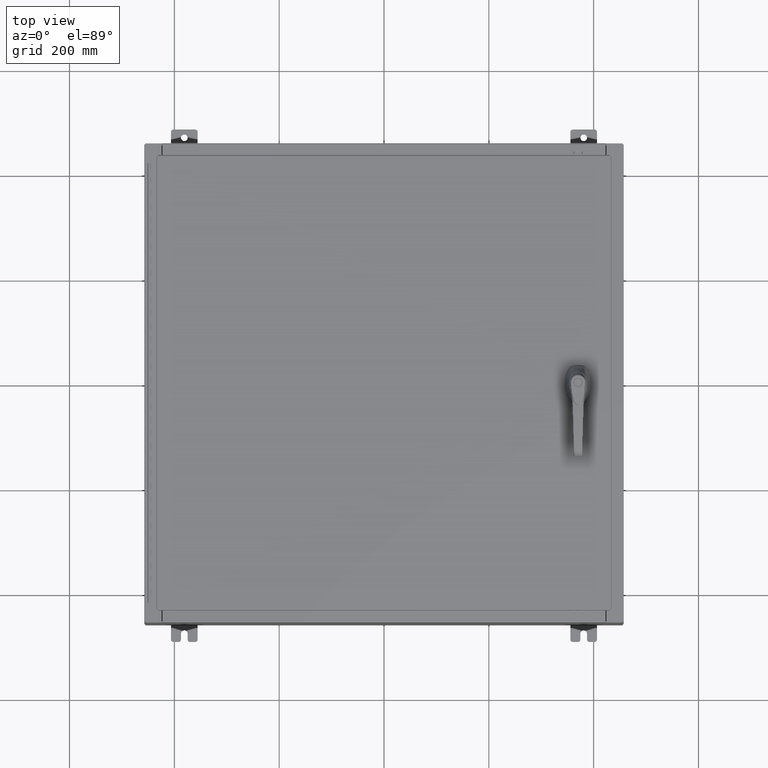
[diagram: clean part render]
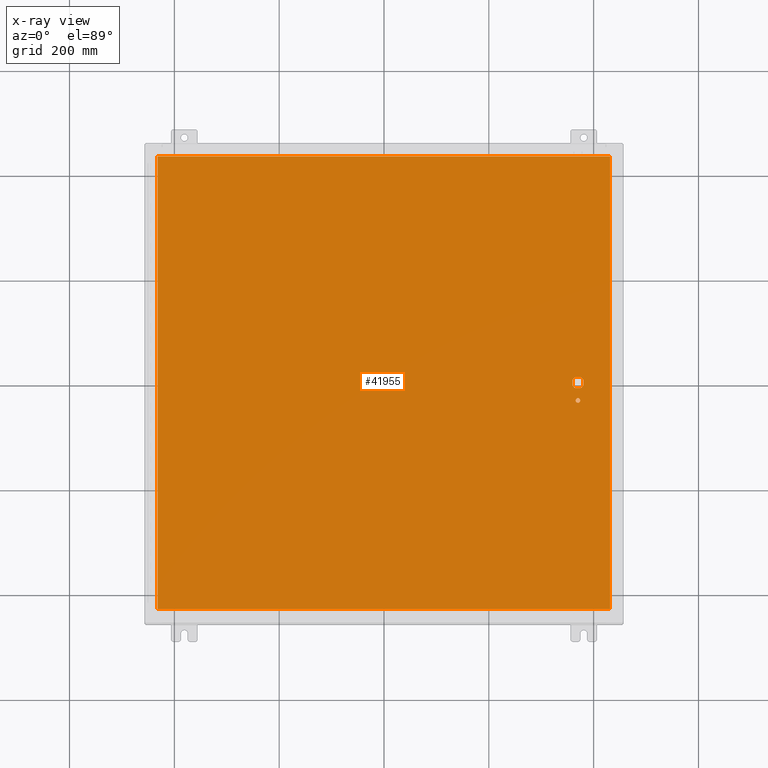
[diagram: x-ray — body ghosted, one internal face saturated and labeled with its STEP entity id]
A machine part, top view, then the same camera in x-ray: the body is ghosted and one INTERNAL B-rep face — a face not visible from any outside direction — is saturated and labeled: STEP entity #41955.
In plain terms, the highlighted planar face has unit normal (0, 0, -1).
Its self-contained STEP definition (entity closure, byte-faithful):
#2601 = EDGE_CURVE ( 'NONE', #122475, #100259, #29205, .T. ) ;
#3986 = ORIENTED_EDGE ( 'NONE', *, *, #30533, .F. ) ;
#4127 = DIRECTION ( 'NONE',  ( -1.000000000000000000, -0.0000000000000000000, -0.0000000000000000000 ) ) ;
#4489 = VERTEX_POINT ( 'NONE', #11542 ) ;
#4618 = AXIS2_PLACEMENT_3D ( 'NONE', #85239, #27303, #94939 ) ;
#5977 = EDGE_LOOP ( 'NONE', ( #25456, #96350 ) ) ;
#8508 = VERTEX_POINT ( 'NONE', #57621 ) ;
#11090 = VERTEX_POINT ( 'NONE', #61719 ) ;
#11185 = CARTESIAN_POINT ( 'NONE',  ( 14.17500000000007400, 0.0000000000000000000, -0.07470000000000003000 ) ) ;
#11542 = CARTESIAN_POINT ( 'NONE',  ( 14.37777262924369000, 0.4029999999999252000, -0.07470000000000003000 ) ) ;
#11839 = CIRCLE ( 'NONE', #111214, 0.4499999999999168000 ) ;
#12846 = AXIS2_PLACEMENT_3D ( 'NONE', #35250, #16188, #83838 ) ;
#13475 = CARTESIAN_POINT ( 'NONE',  ( 14.57799999999999900, 0.0000000000000000000, -0.07470000000000003000 ) ) ;
#15281 = CIRCLE ( 'NONE', #4618, 0.1715000000000011500 ) ;
#15480 = CARTESIAN_POINT ( 'NONE',  ( -16.99029999999999800, -17.00630000000000000, -0.07470000000000019700 ) ) ;
#16188 = DIRECTION ( 'NONE',  ( 0.0000000000000000000, 0.0000000000000000000, -1.000000000000000000 ) ) ;
#16287 = ORIENTED_EDGE ( 'NONE', *, *, #55651, .T. ) ;
#18176 = DIRECTION ( 'NONE',  ( -1.000000000000000000, 0.0000000000000000000, 0.0000000000000000000 ) ) ;
#19513 = ORIENTED_EDGE ( 'NONE', *, *, #2601, .T. ) ;
#19680 = EDGE_CURVE ( 'NONE', #54556, #63920, #24441, .T. ) ;
#19795 = CARTESIAN_POINT ( 'NONE',  ( 14.77822737075630900, -0.4029999999999252000, -0.07470000000000003000 ) ) ;
#20873 = DIRECTION ( 'NONE',  ( 0.0000000000000000000, -1.000000000000000000, 0.0000000000000000000 ) ) ;
#22080 = CIRCLE ( 'NONE', #62722, 0.4499999999999168000 ) ;
#23130 = DIRECTION ( 'NONE',  ( -1.000000000000000000, -1.776356839400246700E-015, 0.0000000000000000000 ) ) ;
#24441 = LINE ( 'NONE', #57117, #92513 ) ;
#24478 = EDGE_CURVE ( 'NONE', #47353, #92504, #103629, .T. ) ;
#25456 = ORIENTED_EDGE ( 'NONE', *, *, #76000, .T. ) ;
#26355 = CARTESIAN_POINT ( 'NONE',  ( 14.17500000000007400, 0.2002273707563075900, -0.07470000000000003000 ) ) ;
#27036 = CARTESIAN_POINT ( 'NONE',  ( 0.0000000000000000000, -0.4029999999999252000, -0.07470000000000003000 ) ) ;
#27204 = VECTOR ( 'NONE', #20873, 39.37007874015748100 ) ;
#27216 = ORIENTED_EDGE ( 'NONE', *, *, #33194, .T. ) ;
#27303 = DIRECTION ( 'NONE',  ( -0.0000000000000000000, -0.0000000000000000000, 1.000000000000000000 ) ) ;
#27489 = ORIENTED_EDGE ( 'NONE', *, *, #92043, .F. ) ;
#28669 = EDGE_LOOP ( 'NONE', ( #113348, #125325, #3986, #66992 ) ) ;
#29205 = CIRCLE ( 'NONE', #72695, 0.4499999999999168000 ) ;
#29227 = VECTOR ( 'NONE', #92378, 39.37007874015748100 ) ;
#30533 = EDGE_CURVE ( 'NONE', #78209, #84609, #122445, .T. ) ;
#31243 = EDGE_CURVE ( 'NONE', #87976, #122475, #54307, .T. ) ;
#31715 = CARTESIAN_POINT ( 'NONE',  ( 16.99029999999999800, 17.00630000000000700, -0.07470000000000000300 ) ) ;
#32192 = DIRECTION ( 'NONE',  ( -0.0000000000000000000, -0.0000000000000000000, 1.000000000000000000 ) ) ;
#33194 = EDGE_CURVE ( 'NONE', #85109, #102767, #11839, .T. ) ;
#35250 = CARTESIAN_POINT ( 'NONE',  ( 0.0000000000000000000, 0.0000000000000000000, -0.07470000000000000300 ) ) ;
#36061 = LINE ( 'NONE', #90755, #110189 ) ;
#37777 = LINE ( 'NONE', #99913, #60457 ) ;
#40231 = CARTESIAN_POINT ( 'NONE',  ( 14.57799999999999900, -1.338000000000000100, -0.07470000000000003000 ) ) ;
#41955 = ADVANCED_FACE ( 'NONE', ( #86696, #61030, #44422 ), #122297, .T. ) ;
#42931 = ORIENTED_EDGE ( 'NONE', *, *, #48716, .T. ) ;
#44422 = FACE_BOUND ( 'NONE', #105941, .T. ) ;
#47353 = VERTEX_POINT ( 'NONE', #110457 ) ;
#48361 = CARTESIAN_POINT ( 'NONE',  ( 14.57799999999999900, 0.0000000000000000000, -0.07470000000000003000 ) ) ;
#48716 = EDGE_CURVE ( 'NONE', #4489, #87976, #22080, .T. ) ;
#49946 = DIRECTION ( 'NONE',  ( -1.000000000000000000, 0.0000000000000000000, 0.0000000000000000000 ) ) ;
#51505 = CARTESIAN_POINT ( 'NONE',  ( 14.57799999999999900, 0.0000000000000000000, -0.07470000000000003000 ) ) ;
#54307 = LINE ( 'NONE', #11185, #27204 ) ;
#54376 = VECTOR ( 'NONE', #18176, 39.37007874015748100 ) ;
#54447 = VECTOR ( 'NONE', #94649, 39.37007874015748100 ) ;
#54556 = VERTEX_POINT ( 'NONE', #78893 ) ;
#55651 = EDGE_CURVE ( 'NONE', #100259, #85109, #111925, .T. ) ;
#55718 = CARTESIAN_POINT ( 'NONE',  ( -16.99029999999999400, 17.00630000000000700, -0.07470000000000000300 ) ) ;
#57117 = CARTESIAN_POINT ( 'NONE',  ( 16.99029999999999800, -17.00629999999999600, -0.07470000000000019700 ) ) ;
#57343 = LINE ( 'NONE', #105289, #54376 ) ;
#57522 = DIRECTION ( 'NONE',  ( 0.0000000000000000000, 1.000000000000000000, 0.0000000000000000000 ) ) ;
#57621 = CARTESIAN_POINT ( 'NONE',  ( 14.74950000000000100, -1.338000000000000100, -0.07470000000000003000 ) ) ;
#58055 = DIRECTION ( 'NONE',  ( -1.000000000000000000, -5.329070518200740300E-015, 0.0000000000000000000 ) ) ;
#58218 = DIRECTION ( 'NONE',  ( 0.0000000000000000000, -1.000000000000000000, 0.0000000000000000000 ) ) ;
#60457 = VECTOR ( 'NONE', #110104, 39.37007874015748100 ) ;
#61030 = FACE_OUTER_BOUND ( 'NONE', #28669, .T. ) ;
#61211 = DIRECTION ( 'NONE',  ( -1.000000000000000000, -1.776356839400246700E-015, 0.0000000000000000000 ) ) ;
#61719 = CARTESIAN_POINT ( 'NONE',  ( 14.40649999999999800, -1.338000000000000100, -0.07470000000000003000 ) ) ;
#62722 = AXIS2_PLACEMENT_3D ( 'NONE', #48361, #115983, #58055 ) ;
#63657 = CARTESIAN_POINT ( 'NONE',  ( 14.37777262924369000, -0.4029999999999250300, -0.07470000000000003000 ) ) ;
#63920 = VERTEX_POINT ( 'NONE', #31715 ) ;
#66992 = ORIENTED_EDGE ( 'NONE', *, *, #119212, .F. ) ;
#71042 = VECTOR ( 'NONE', #58218, 39.37007874015748100 ) ;
#72695 = AXIS2_PLACEMENT_3D ( 'NONE', #51505, #119091, #61211 ) ;
#76000 = EDGE_CURVE ( 'NONE', #8508, #11090, #15281, .T. ) ;
#77645 = LINE ( 'NONE', #15480, #29227 ) ;
#78209 = VERTEX_POINT ( 'NONE', #55718 ) ;
#78893 = CARTESIAN_POINT ( 'NONE',  ( 16.99029999999999800, -17.00630000000000000, -0.07470000000000000300 ) ) ;
#81118 = DIRECTION ( 'NONE',  ( -0.0000000000000000000, -0.0000000000000000000, 1.000000000000000000 ) ) ;
#83838 = DIRECTION ( 'NONE',  ( -1.000000000000000000, 0.0000000000000000000, -0.0000000000000000000 ) ) ;
#84609 = VERTEX_POINT ( 'NONE', #122264 ) ;
#85109 = VERTEX_POINT ( 'NONE', #19795 ) ;
#85239 = CARTESIAN_POINT ( 'NONE',  ( 14.57799999999999900, -1.338000000000000100, -0.07470000000000003000 ) ) ;
#86696 = FACE_BOUND ( 'NONE', #5977, .T. ) ;
#86824 = EDGE_CURVE ( 'NONE', #84609, #54556, #77645, .T. ) ;
#87710 = CARTESIAN_POINT ( 'NONE',  ( 14.17500000000007400, -0.2002273707563079800, -0.07470000000000003000 ) ) ;
#87976 = VERTEX_POINT ( 'NONE', #26355 ) ;
#90079 = CARTESIAN_POINT ( 'NONE',  ( 14.57799999999999900, 0.0000000000000000000, -0.07470000000000003000 ) ) ;
#90755 = CARTESIAN_POINT ( 'NONE',  ( 16.99029999999999800, 17.00630000000000700, -0.07469999999999910000 ) ) ;
#92043 = EDGE_CURVE ( 'NONE', #47353, #102767, #37777, .T. ) ;
#92378 = DIRECTION ( 'NONE',  ( 1.000000000000000000, -0.0000000000000000000, -0.0000000000000000000 ) ) ;
#92504 = VERTEX_POINT ( 'NONE', #108817 ) ;
#92513 = VECTOR ( 'NONE', #57522, 39.37007874015748100 ) ;
#94557 = AXIS2_PLACEMENT_3D ( 'NONE', #40231, #107874, #49946 ) ;
#94567 = CIRCLE ( 'NONE', #94557, 0.1715000000000011500 ) ;
#94649 = DIRECTION ( 'NONE',  ( 1.000000000000000000, 0.0000000000000000000, 0.0000000000000000000 ) ) ;
#94939 = DIRECTION ( 'NONE',  ( -1.000000000000000000, 0.0000000000000000000, 0.0000000000000000000 ) ) ;
#96350 = ORIENTED_EDGE ( 'NONE', *, *, #110475, .T. ) ;
#99682 = ORIENTED_EDGE ( 'NONE', *, *, #24478, .T. ) ;
#99823 = DIRECTION ( 'NONE',  ( -1.000000000000000000, -5.329070518200740300E-015, 0.0000000000000000000 ) ) ;
#99913 = CARTESIAN_POINT ( 'NONE',  ( 14.98099999999992700, 8.175868191945441800E-014, -0.07470000000000003000 ) ) ;
#100259 = VERTEX_POINT ( 'NONE', #63657 ) ;
#102767 = VERTEX_POINT ( 'NONE', #111310 ) ;
#103629 = CIRCLE ( 'NONE', #125209, 0.4499999999999168000 ) ;
#104395 = ORIENTED_EDGE ( 'NONE', *, *, #31243, .T. ) ;
#105289 = CARTESIAN_POINT ( 'NONE',  ( 0.0000000000000000000, 0.4029999999999252000, -0.07470000000000003000 ) ) ;
#105941 = EDGE_LOOP ( 'NONE', ( #27216, #27489, #99682, #113150, #42931, #104395, #19513, #16287 ) ) ;
#106442 = CARTESIAN_POINT ( 'NONE',  ( -16.99029999999999400, 17.00630000000000300, -0.07470000000000019700 ) ) ;
#106726 = EDGE_CURVE ( 'NONE', #92504, #4489, #57343, .T. ) ;
#107874 = DIRECTION ( 'NONE',  ( -0.0000000000000000000, -0.0000000000000000000, 1.000000000000000000 ) ) ;
#108817 = CARTESIAN_POINT ( 'NONE',  ( 14.77822737075630900, 0.4029999999999250300, -0.07470000000000003000 ) ) ;
#110104 = DIRECTION ( 'NONE',  ( 5.457491617345625800E-015, -1.000000000000000000, 0.0000000000000000000 ) ) ;
#110189 = VECTOR ( 'NONE', #4127, 39.37007874015748100 ) ;
#110457 = CARTESIAN_POINT ( 'NONE',  ( 14.98099999999992700, 0.2002273707563075900, -0.07470000000000003000 ) ) ;
#110475 = EDGE_CURVE ( 'NONE', #11090, #8508, #94567, .T. ) ;
#111214 = AXIS2_PLACEMENT_3D ( 'NONE', #13475, #81118, #23130 ) ;
#111310 = CARTESIAN_POINT ( 'NONE',  ( 14.98099999999992700, -0.2002273707563067300, -0.07470000000000003000 ) ) ;
#111925 = LINE ( 'NONE', #27036, #54447 ) ;
#113150 = ORIENTED_EDGE ( 'NONE', *, *, #106726, .T. ) ;
#113348 = ORIENTED_EDGE ( 'NONE', *, *, #19680, .F. ) ;
#115983 = DIRECTION ( 'NONE',  ( -0.0000000000000000000, -0.0000000000000000000, 1.000000000000000000 ) ) ;
#119091 = DIRECTION ( 'NONE',  ( -0.0000000000000000000, -0.0000000000000000000, 1.000000000000000000 ) ) ;
#119212 = EDGE_CURVE ( 'NONE', #63920, #78209, #36061, .T. ) ;
#122264 = CARTESIAN_POINT ( 'NONE',  ( -16.99029999999999800, -17.00630000000000000, -0.07470000000000000300 ) ) ;
#122297 = PLANE ( 'NONE',  #12846 ) ;
#122445 = LINE ( 'NONE', #106442, #71042 ) ;
#122475 = VERTEX_POINT ( 'NONE', #87710 ) ;
#125209 = AXIS2_PLACEMENT_3D ( 'NONE', #90079, #32192, #99823 ) ;
#125325 = ORIENTED_EDGE ( 'NONE', *, *, #86824, .F. ) ;